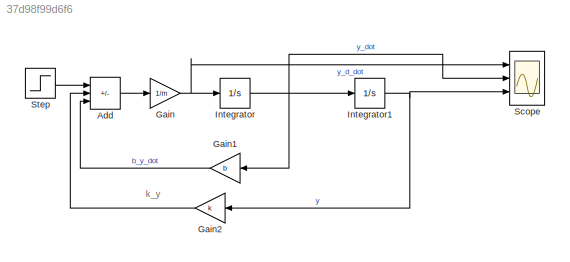
MODEL slx_37d98f99d6f6
KIND model
CONFIG AbsTol = auto
CONFIG EnableMultiTasking = off
CONFIG FixedStep = auto
CONFIG MaxStep = auto
CONFIG MinStep = auto
CONFIG RelTol = 1e-3
CONFIG SampleTimeConstraint = Unconstrained
CONFIG SolverName = VariableStepAuto
CONFIG StartTime = 0.0
CONFIG StopTime = 10.0
BLOCK [Sum] Add
  IconShape = rectangular
  Inputs = +--
  Ports = [3, 1]
BLOCK [Gain] Gain
  Gain = 1/m
BLOCK [Gain] Gain1
  Gain = b
BLOCK [Gain] Gain2
  Gain = k
BLOCK [Integrator] Integrator
  InitialCondition = 10
  Ports = [1, 1]
BLOCK [Integrator] Integrator1
  Ports = [1, 1]
BLOCK [Scope] Scope
  Floating = off
  NumInputPorts = 3
  Ports = [3]
  ScopeSpecificationString = Simulink.scopes.TimeScopeBlockCfg('CurrentConfiguration', extmgr.ConfigurationSet(extmgr.Configuration('Core','General UI',true),extmgr.Configuration('Core','Source UI',true),extmgr.Configuration('Sources','WiredSimulink',true),extmgr.Configuration('Visuals','Time Domain',true,'SerializedDisplays',{struct('MinYLimReal','-7.3826','MaxYLimReal','3.73374','YLabelReal','','MinYLimMag','0.00000','MaxYL...<+3525ch>
BLOCK [Step] Step
  After = g
  SampleTime = 0
ANNOTATION (root): k_y
LINE Add:1 -> Gain:1
LINE Gain1:1 -> Add:3
LINE Gain2:1 -> Add:2
NET Gain:1 -> Integrator:1, Scope:1
NET Integrator1:1 -> Gain2:1, Scope:3
NET Integrator:1 -> Gain1:1, Integrator1:1, Scope:2
LINE Step:1 -> Add:1
note: NET lines group one-source signal fan-out (src -> all destinations, sorted); 1:1 wires keep LINE
